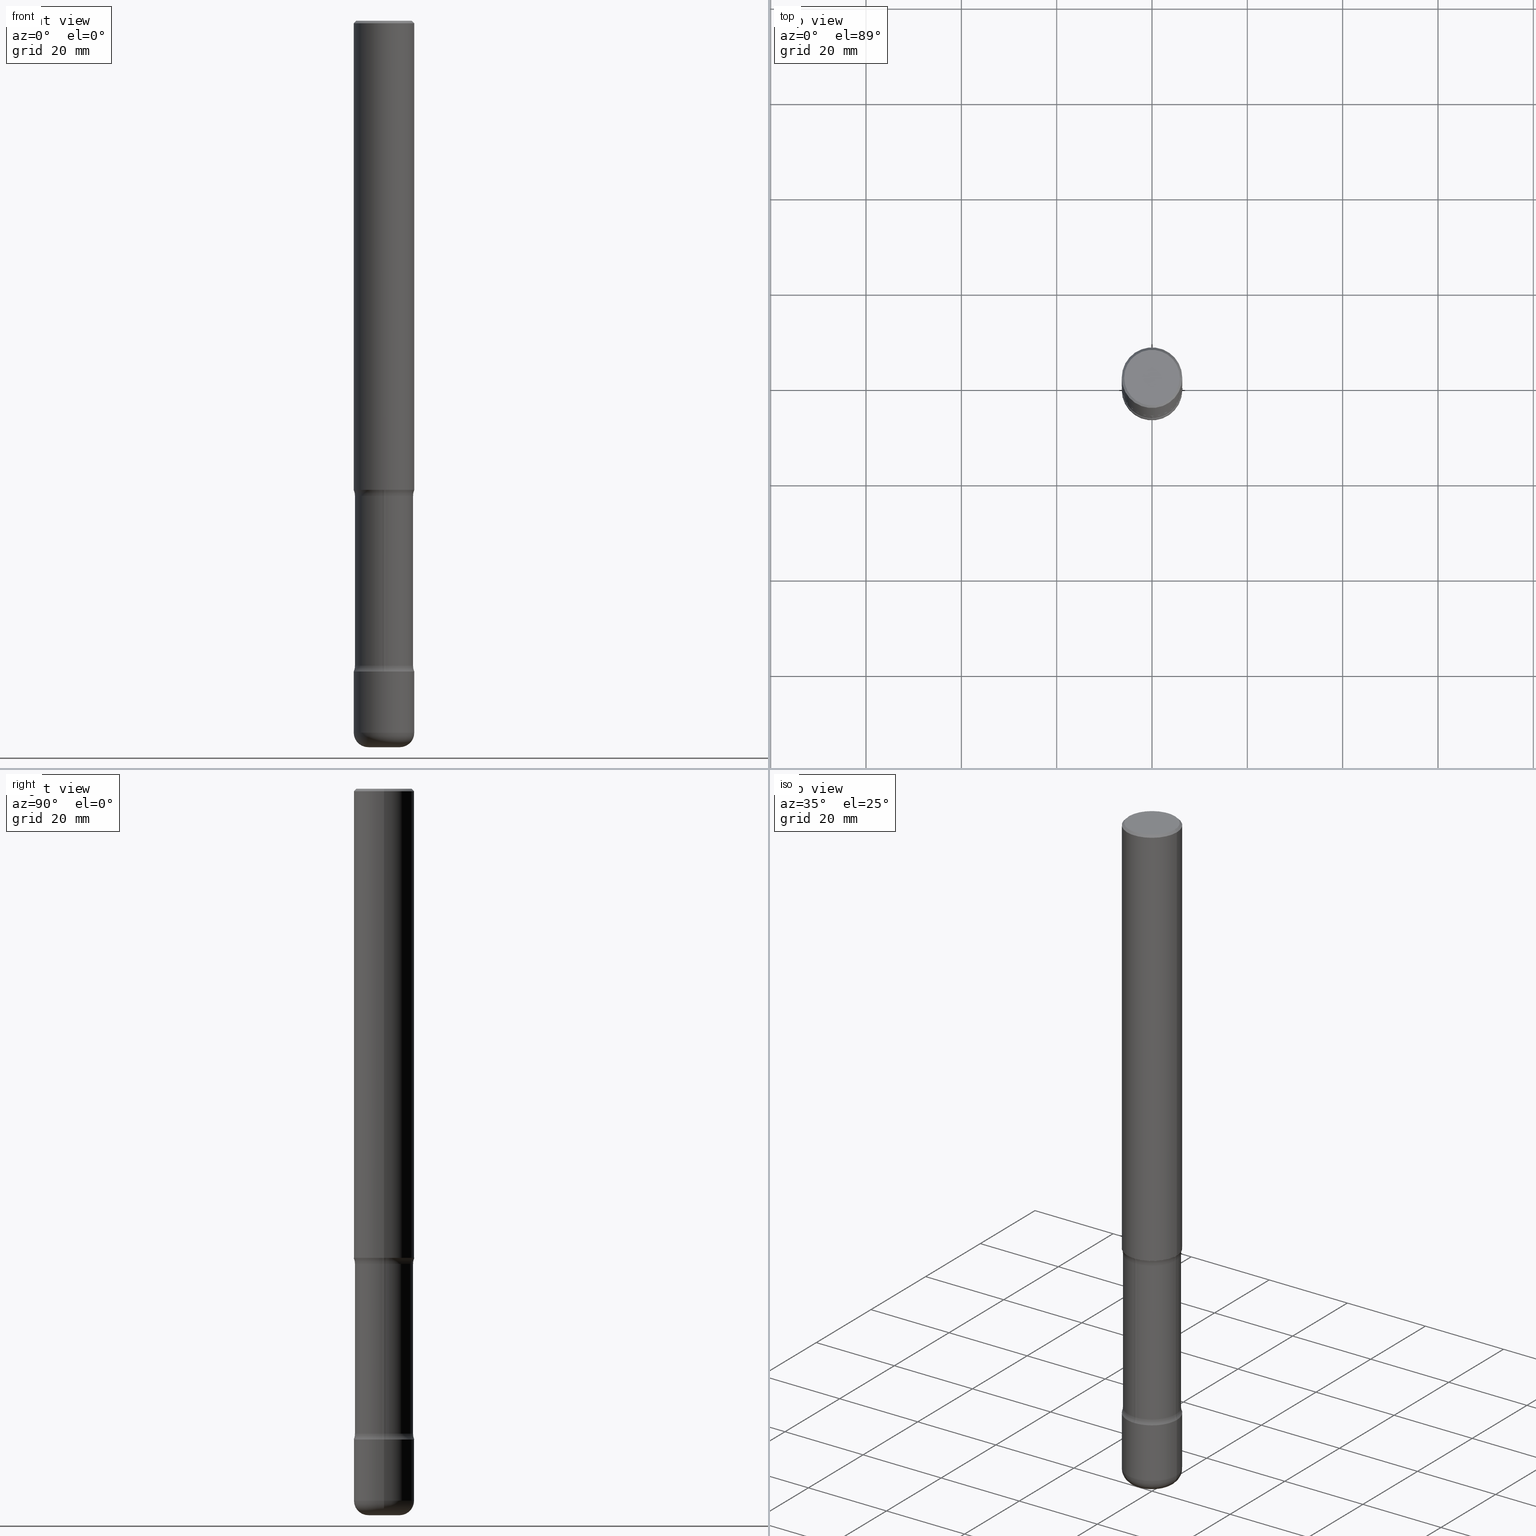
[diagram: canonical four-view strip — front | top / right | iso, engineering-drawing reading convention]
A machine part, canonical four-view strip (front | top / right | iso — engineering-drawing reading convention). The complete STEP part file that produces these views, byte-faithful:
ISO-10303-21;
HEADER;
FILE_DESCRIPTION (( 'STEP AP203' ),
    '1' );
FILE_NAME ('32838.STEP',
    '2023-03-11T07:05:41',
    ( '' ),
    ( '' ),
    'SwSTEP 2.0',
    'SolidWorks 2022',
    '' );
FILE_SCHEMA (( 'CONFIG_CONTROL_DESIGN' ));
ENDSEC;

DATA;
#1 = CARTESIAN_POINT ( 'NONE',  ( 1.314439483324511145E-28, -1.876671219628190963E-14, -5.375000000000000888 ) ) ;
#2 = APPROVAL_DATE_TIME ( #566, #227 ) ;
#3 = DIRECTION ( 'NONE',  ( 1.000000000000000000, -6.982962677686279332E-15, 0.000000000000000000 ) ) ;
#4 = APPLICATION_CONTEXT ( 'configuration controlled 3d designs of mechanical parts and assemblies' ) ;
#5 = EDGE_LOOP ( 'NONE', ( #623, #59, #175, #531 ) ) ;
#6 = PERSON_AND_ORGANIZATION ( #572, #706 ) ;
#7 = DIRECTION ( 'NONE',  ( 2.447307951285550770E-29, -3.488847578381714098E-15, -1.000000000000000000 ) ) ;
#8 = MANIFOLD_SOLID_BREP ( 'Body-Move/Copy2[1]', #286 ) ;
#9 = ORIENTED_EDGE ( 'NONE', *, *, #25, .T. ) ;
#10 = APPLICATION_PROTOCOL_DEFINITION ( 'international standard', 'config_control_design', 1994, #170 ) ;
#11 = DIRECTION ( 'NONE',  ( -1.000000000000000000, 6.982962677686265922E-15, -4.883557194083112340E-29 ) ) ;
#12 = EDGE_CURVE ( 'NONE', #544, #586, #197, .T. ) ;
#13 = MANIFOLD_SOLID_BREP ( 'Body-Move/Copy2[4]', #259 ) ;
#14 = VERTEX_POINT ( 'NONE', #96 ) ;
#15 = VECTOR ( 'NONE', #347, 39.37007874015748143 ) ;
#16 = APPROVAL_STATUS ( 'not_yet_approved' ) ;
#17 = CARTESIAN_POINT ( 'NONE',  ( 9.595994639108339414E-29, -1.370053714254949480E-14, -3.923989794855664126 ) ) ;
#18 = ORIENTED_EDGE ( 'NONE', *, *, #410, .T. ) ;
#19 = PERSON_AND_ORGANIZATION ( #572, #706 ) ;
#20 = DIRECTION ( 'NONE',  ( -2.445468806185136597E-29, 3.491481338843145583E-15, 1.000000000000000000 ) ) ;
#21 = ADVANCED_FACE ( 'NONE', ( #348 ), #298, .F. ) ;
#22 = ORIENTED_EDGE ( 'NONE', *, *, #301, .T. ) ;
#23 = DIRECTION ( 'NONE',  ( 1.000000000000000000, -6.982962677686270655E-15, 0.000000000000000000 ) ) ;
#24 = ORIENTED_EDGE ( 'NONE', *, *, #64, .T. ) ;
#25 = EDGE_CURVE ( 'NONE', #115, #515, #158, .T. ) ;
#26 = CIRCLE ( 'NONE', #447, 0.2500000000000000000 ) ;
#27 = EDGE_CURVE ( 'NONE', #544, #469, #364, .T. ) ;
#28 = CIRCLE ( 'NONE', #756, 0.1249999999999999584 ) ;
#29 = DIRECTION ( 'NONE',  ( 6.982962677686265922E-15, 1.000000000000000000, -4.370956789862821150E-15 ) ) ;
#30 = AXIS2_PLACEMENT_3D ( 'NONE', #111, #427, #310 ) ;
#31 = DIRECTION ( 'NONE',  ( 1.000000000000000000, -6.860497997771530774E-15, 4.840831133887331050E-29 ) ) ;
#32 = VERTEX_POINT ( 'NONE', #675 ) ;
#33 = APPROVAL_DATE_TIME ( #101, #592 ) ;
#34 = DIRECTION ( 'NONE',  ( -2.445468806185136597E-29, 3.491481338843145583E-15, 1.000000000000000000 ) ) ;
#35 = VERTEX_POINT ( 'NONE', #526 ) ;
#36 = CARTESIAN_POINT ( 'NONE',  ( -0.2400000000000001299, -1.187418396267109730E-14, -3.923989794855664126 ) ) ;
#37 = ADVANCED_FACE ( 'NONE', ( #794 ), #428, .T. ) ;
#38 = DIRECTION ( 'NONE',  ( 0.7071067811865469066, -7.319954787623254468E-15, -0.7071067811865481278 ) ) ;
#39 = CIRCLE ( 'NONE', #588, 0.1199999999999999262 ) ;
#40 = AXIS2_PLACEMENT_3D ( 'NONE', #294, #484, #540 ) ;
#41 = APPROVAL_PERSON_ORGANIZATION ( #19, #592, #517 ) ;
#42 = ORIENTED_EDGE ( 'NONE', *, *, #702, .F. ) ;
#43 = CARTESIAN_POINT ( 'NONE',  ( 9.595994639108339414E-29, -1.370053714254949480E-14, -3.923989794855664126 ) ) ;
#44 = CC_DESIGN_DATE_AND_TIME_ASSIGNMENT ( #642, #84, ( #757 ) ) ;
#45 = DIRECTION ( 'NONE',  ( 1.000000000000000000, -6.982962677686265133E-15, 0.000000000000000000 ) ) ;
#46 = DIRECTION ( 'NONE',  ( -2.445468806185136597E-29, 3.491481338843145583E-15, 1.000000000000000000 ) ) ;
#47 = CARTESIAN_POINT ( 'NONE',  ( 1.109421455397081628E-27, -1.583959811155270230E-13, -45.36641205936084731 ) ) ;
#48 = VERTEX_POINT ( 'NONE', #174 ) ;
#49 = ADVANCED_FACE ( 'NONE', ( #671 ), #575, .F. ) ;
#50 = DIRECTION ( 'NONE',  ( -2.445468806185136597E-29, 3.491481338843145583E-15, 1.000000000000000000 ) ) ;
#51 = DIRECTION ( 'NONE',  ( 2.447307951285550210E-29, -3.488847578381714492E-15, -1.000000000000000000 ) ) ;
#52 = ORIENTED_EDGE ( 'NONE', *, *, #661, .T. ) ;
#53 = AXIS2_PLACEMENT_3D ( 'NONE', #693, #74, #696 ) ;
#54 = AXIS2_PLACEMENT_3D ( 'NONE', #278, #784, #407 ) ;
#55 = ORIENTED_EDGE ( 'NONE', *, *, #12, .F. ) ;
#56 = EDGE_CURVE ( 'NONE', #35, #515, #100, .T. ) ;
#57 = FACE_OUTER_BOUND ( 'NONE', #151, .T. ) ;
#58 = CARTESIAN_POINT ( 'NONE',  ( 1.302459181810417859E-28, -1.859566524174961022E-14, -5.326010205144338094 ) ) ;
#59 = ORIENTED_EDGE ( 'NONE', *, *, #372, .F. ) ;
#60 = CARTESIAN_POINT ( 'NONE',  ( 2.548781377355619247E-15, 0.3649999999999816724, -5.326010205144338983 ) ) ;
#61 = PLANE ( 'NONE',  #30 ) ;
#62 = CARTESIAN_POINT ( 'NONE',  ( -1.043851414335219820E-46, 1.490343170380447200E-32, 4.268512490100411279E-18 ) ) ;
#63 = EDGE_CURVE ( 'NONE', #359, #88, #607, .T. ) ;
#64 = EDGE_CURVE ( 'NONE', #763, #115, #394, .T. ) ;
#65 = ORIENTED_EDGE ( 'NONE', *, *, #179, .T. ) ;
#66 = DIRECTION ( 'NONE',  ( 6.982962677686265922E-15, 1.000000000000000000, -4.553079989440436725E-15 ) ) ;
#67 = APPROVAL_ROLE ( '' ) ;
#68 = CARTESIAN_POINT ( 'NONE',  ( 1.467281283711081958E-28, -2.094888803305887271E-14, -6.000000000000000888 ) ) ;
#69 = CIRCLE ( 'NONE', #703, 0.2500000000000000000 ) ;
#70 = AXIS2_PLACEMENT_3D ( 'NONE', #431, #181, #685 ) ;
#71 = ORIENTED_EDGE ( 'NONE', *, *, #449, .F. ) ;
#72 = AXIS2_PLACEMENT_3D ( 'NONE', #558, #51, #245 ) ;
#73 = CALENDAR_DATE ( 2023, 11, 3 ) ;
#74 = DIRECTION ( 'NONE',  ( 2.438088387897960049E-29, -3.491481338843145188E-15, -1.000000000000000000 ) ) ;
#75 = ORIENTED_EDGE ( 'NONE', *, *, #97, .T. ) ;
#76 = ADVANCED_FACE ( 'NONE', ( #466 ), #508, .F. ) ;
#77 = MECHANICAL_CONTEXT ( 'NONE', #4, 'mechanical' ) ;
#78 = CARTESIAN_POINT ( 'NONE',  ( -0.2499999999999999722, -1.875355343299744876E-14, -5.880000000000000782 ) ) ;
#79 = VERTEX_POINT ( 'NONE', #154 ) ;
#80 = DIRECTION ( 'NONE',  ( 1.000000000000000000, -6.982962677686261189E-15, 0.000000000000000000 ) ) ;
#81 = ORIENTED_EDGE ( 'NONE', *, *, #747, .F. ) ;
#82 = VECTOR ( 'NONE', #357, 39.37007874015748143 ) ;
#83 = VECTOR ( 'NONE', #718, 39.37007874015748143 ) ;
#84 = DATE_TIME_ROLE ( 'classification_date' ) ;
#85 = DIRECTION ( 'NONE',  ( -2.445468806185136597E-29, 3.491481338843145583E-15, 1.000000000000000000 ) ) ;
#86 = ORIENTED_EDGE ( 'NONE', *, *, #27, .T. ) ;
#87 = DIRECTION ( 'NONE',  ( -2.438088387897960049E-29, 3.491481338843145188E-15, 1.000000000000000000 ) ) ;
#88 = VERTEX_POINT ( 'NONE', #234 ) ;
#89 = CARTESIAN_POINT ( 'NONE',  ( -1.684605559392376198E-27, -2.832062954248278293E-13, -5.999999999999999112 ) ) ;
#90 = ORIENTED_EDGE ( 'NONE', *, *, #485, .F. ) ;
#91 = AXIS2_PLACEMENT_3D ( 'NONE', #62, #573, #203 ) ;
#92 = CIRCLE ( 'NONE', #212, 0.2299999999999997047 ) ;
#93 = CARTESIAN_POINT ( 'NONE',  ( 4.890937612370287172E-31, -6.982962677686310098E-17, -0.02000000000000005593 ) ) ;
#94 = APPROVAL_PERSON_ORGANIZATION ( #454, #227, #67 ) ;
#95 = CARTESIAN_POINT ( 'NONE',  ( -1.579290560953584941E-17, -2.093608588548193142E-14, -5.996333319203365875 ) ) ;
#96 = CARTESIAN_POINT ( 'NONE',  ( -0.2499999999999999722, -5.023303067996774148E-15, -3.875000000000000444 ) ) ;
#97 = EDGE_CURVE ( 'NONE', #48, #503, #600, .T. ) ;
#98 = EDGE_CURVE ( 'NONE', #415, #527, #414, .T. ) ;
#99 = CARTESIAN_POINT ( 'NONE',  ( -1.680822009453894668E-15, -0.2400000000000188927, -5.326010205144336318 ) ) ;
#100 = LINE ( 'NONE', #787, #82 ) ;
#101 = DATE_AND_TIME ( #769, #724 ) ;
#102 = CYLINDRICAL_SURFACE ( 'NONE', #40, 0.2400000000000001854 ) ;
#103 = ORIENTED_EDGE ( 'NONE', *, *, #569, .T. ) ;
#104 = TOROIDAL_SURFACE ( 'NONE', #159, 0.3650000000000000466, 0.1250000000000000555 ) ;
#105 = DIRECTION ( 'NONE',  ( 1.000000000000000000, -6.982962677686265133E-15, 0.000000000000000000 ) ) ;
#106 = AXIS2_PLACEMENT_3D ( 'NONE', #1, #192, #624 ) ;
#107 = AXIS2_PLACEMENT_3D ( 'NONE', #465, #660, #785 ) ;
#108 = ADVANCED_FACE ( 'NONE', ( #553 ), #506, .F. ) ;
#109 = EDGE_LOOP ( 'NONE', ( #132, #725, #583, #368 ) ) ;
#110 = DIRECTION ( 'NONE',  ( -2.445468806185136597E-29, 3.491481338843145583E-15, 1.000000000000000000 ) ) ;
#111 = CARTESIAN_POINT ( 'NONE',  ( 1.314439483324511145E-28, -1.876671219628190963E-14, -5.375000000000000888 ) ) ;
#112 = EDGE_CURVE ( 'NONE', #586, #204, #39, .T. ) ;
#113 = ORIENTED_EDGE ( 'NONE', *, *, #97, .F. ) ;
#114 = DIRECTION ( 'NONE',  ( 6.982962677686265922E-15, 1.000000000000000000, -3.488847578381714098E-15 ) ) ;
#115 = VERTEX_POINT ( 'NONE', #324 ) ;
#116 = CARTESIAN_POINT ( 'NONE',  ( 9.476191623967405434E-29, -1.352949018801719066E-14, -3.875000000000000444 ) ) ;
#117 = FACE_OUTER_BOUND ( 'NONE', #267, .T. ) ;
#118 = EDGE_LOOP ( 'NONE', ( #71, #235, #735, #42 ) ) ;
#119 = CIRCLE ( 'NONE', #198, 0.1249999999999999584 ) ;
#120 = AXIS2_PLACEMENT_3D ( 'NONE', #17, #34, #470 ) ;
#121 = ORIENTED_EDGE ( 'NONE', *, *, #332, .F. ) ;
#122 = DIRECTION ( 'NONE',  ( 0.9993908270190957621, -6.978169709227536755E-15, -0.03489949670249952590 ) ) ;
#123 = ADVANCED_FACE ( 'NONE', ( #196 ), #390, .T. ) ;
#124 = EDGE_CURVE ( 'NONE', #750, #262, #676, .T. ) ;
#125 = EDGE_CURVE ( 'NONE', #527, #681, #69, .T. ) ;
#126 = DIRECTION ( 'NONE',  ( 1.000000000000000000, -6.982962677686266711E-15, 4.876176775795935793E-29 ) ) ;
#127 = CARTESIAN_POINT ( 'NONE',  ( 0.000000000000000000, 0.000000000000000000, 0.000000000000000000 ) ) ;
#128 = ORIENTED_EDGE ( 'NONE', *, *, #499, .F. ) ;
#129 = DIRECTION ( 'NONE',  ( 2.447307951285550770E-29, -3.488847578381714098E-15, -1.000000000000000000 ) ) ;
#130 = CARTESIAN_POINT ( 'NONE',  ( 9.593326020798897395E-29, -1.370435875585693755E-14, -3.923989794855664126 ) ) ;
#131 = PRODUCT ( '32838', '32838', '', ( #77 ) ) ;
#132 = ORIENTED_EDGE ( 'NONE', *, *, #56, .F. ) ;
#133 = CARTESIAN_POINT ( 'NONE',  ( 1.109421455397081628E-27, -1.583959811155270230E-13, -45.36641205936084731 ) ) ;
#134 = AXIS2_PLACEMENT_3D ( 'NONE', #468, #709, #772 ) ;
#135 = EDGE_CURVE ( 'NONE', #586, #544, #521, .T. ) ;
#136 = ADVANCED_FACE ( 'NONE', ( #434 ), #460, .F. ) ;
#137 = ORIENTED_EDGE ( 'NONE', *, *, #806, .T. ) ;
#138 = PERSON_AND_ORGANIZATION_ROLE ( 'classification_officer' ) ;
#139 = DIRECTION ( 'NONE',  ( -2.445468806185136597E-29, 3.491481338843145583E-15, 1.000000000000000000 ) ) ;
#140 = ORIENTED_EDGE ( 'NONE', *, *, #410, .F. ) ;
#141 = DATE_AND_TIME ( #699, #691 ) ;
#142 = DIRECTION ( 'NONE',  ( -2.445468806185136597E-29, 3.491481338843145583E-15, 1.000000000000000000 ) ) ;
#143 = ORIENTED_EDGE ( 'NONE', *, *, #780, .T. ) ;
#144 = CARTESIAN_POINT ( 'NONE',  ( 0.2400000000000002687, -2.027157628439431676E-14, -5.326010205144338094 ) ) ;
#145 = EDGE_LOOP ( 'NONE', ( #24, #648 ) ) ;
#146 = AXIS2_PLACEMENT_3D ( 'NONE', #47, #542, #424 ) ;
#147 = AXIS2_PLACEMENT_3D ( 'NONE', #116, #187, #365 ) ;
#148 = CARTESIAN_POINT ( 'NONE',  ( 0.000000000000000000, 0.000000000000000000, 0.000000000000000000 ) ) ;
#149 = FACE_OUTER_BOUND ( 'NONE', #5, .T. ) ;
#150 = ADVANCED_FACE ( 'NONE', ( #639 ), #307, .F. ) ;
#151 = EDGE_LOOP ( 'NONE', ( #190, #701, #312, #519 ) ) ;
#152 = ADVANCED_FACE ( 'NONE', ( #242 ), #631, .F. ) ;
#153 = CARTESIAN_POINT ( 'NONE',  ( -0.3650000000000002687, -1.600218425622524303E-14, -5.326010205144338094 ) ) ;
#154 = CARTESIAN_POINT ( 'NONE',  ( -0.2500000000000000000, -1.787195439493955396E-14, -5.375000000000000888 ) ) ;
#155 = DIRECTION ( 'NONE',  ( 1.000000000000000000, -6.982962677686265922E-15, 4.876176775795935793E-29 ) ) ;
#156 = DIRECTION ( 'NONE',  ( -2.445468806185136597E-29, 3.491481338843145583E-15, 1.000000000000000000 ) ) ;
#157 = EDGE_CURVE ( 'NONE', #363, #14, #738, .T. ) ;
#158 = CIRCLE ( 'NONE', #393, 0.1250000000000000000 ) ;
#159 = AXIS2_PLACEMENT_3D ( 'NONE', #182, #7, #189 ) ;
#160 = AXIS2_PLACEMENT_3D ( 'NONE', #476, #50, #778 ) ;
#161 = FACE_OUTER_BOUND ( 'NONE', #342, .T. ) ;
#162 = CC_DESIGN_APPROVAL ( #786, ( #397 ) ) ;
#163 = ORIENTED_EDGE ( 'NONE', *, *, #475, .T. ) ;
#164 = CARTESIAN_POINT ( 'NONE',  ( 0.2499999999999997224, -1.784954126219744217E-15, -0.02000000000000005593 ) ) ;
#165 = DIRECTION ( 'NONE',  ( -1.000000000000000000, 6.982962677686266711E-15, 0.000000000000000000 ) ) ;
#166 = CIRCLE ( 'NONE', #230, 0.2400000000000001021 ) ;
#167 = CARTESIAN_POINT ( 'NONE',  ( -1.043851414335219820E-46, 1.490343170380447200E-32, 4.268512490100411279E-18 ) ) ;
#168 = LOCAL_TIME ( 2, 5, 41.00000000000000000, #513 ) ;
#169 = DIRECTION ( 'NONE',  ( 6.860497997771532351E-15, 1.000000000000000000, 0.000000000000000000 ) ) ;
#170 = APPLICATION_CONTEXT ( 'configuration controlled 3d designs of mechanical parts and assemblies' ) ;
#171 = ORIENTED_EDGE ( 'NONE', *, *, #698, .F. ) ;
#172 = FACE_OUTER_BOUND ( 'NONE', #320, .T. ) ;
#173 = PLANE ( 'NONE',  #72 ) ;
#174 = CARTESIAN_POINT ( 'NONE',  ( -0.2299999999999997047, 1.640996229256270547E-15, 4.268512490089056766E-18 ) ) ;
#175 = ORIENTED_EDGE ( 'NONE', *, *, #332, .T. ) ;
#176 = DIRECTION ( 'NONE',  ( 2.445468806185136597E-29, -3.491481338843145583E-15, -1.000000000000000000 ) ) ;
#177 = DIRECTION ( 'NONE',  ( -2.445468806185136597E-29, 3.491481338843145583E-15, 1.000000000000000000 ) ) ;
#178 = ORIENTED_EDGE ( 'NONE', *, *, #659, .F. ) ;
#179 = EDGE_CURVE ( 'NONE', #561, #359, #802, .T. ) ;
#180 = ADVANCED_FACE ( 'NONE', ( #744 ), #104, .F. ) ;
#181 = DIRECTION ( 'NONE',  ( -2.445468806185136597E-29, 3.491481338843145583E-15, 1.000000000000000000 ) ) ;
#182 = CARTESIAN_POINT ( 'NONE',  ( 9.595994639108339414E-29, -1.370053714254949480E-14, -3.923989794855664126 ) ) ;
#183 = AXIS2_PLACEMENT_3D ( 'NONE', #68, #371, #439 ) ;
#184 = CIRCLE ( 'NONE', #740, 0.1250000000000000000 ) ;
#185 = TOROIDAL_SURFACE ( 'NONE', #771, 0.1300000000000000044, 0.1199999999999999123 ) ;
#186 = ORIENTED_EDGE ( 'NONE', *, *, #619, .F. ) ;
#187 = DIRECTION ( 'NONE',  ( -2.445468806185136597E-29, 3.491481338843145583E-15, 1.000000000000000000 ) ) ;
#188 = FACE_OUTER_BOUND ( 'NONE', #677, .T. ) ;
#189 = DIRECTION ( 'NONE',  ( 6.982962677686265922E-15, 1.000000000000000000, -3.488847578381714098E-15 ) ) ;
#190 = ORIENTED_EDGE ( 'NONE', *, *, #157, .T. ) ;
#191 = ADVANCED_BREP_SHAPE_REPRESENTATION ( '32838', ( #8, #275, #539, #13, #224 ), #263 ) ;
#192 = DIRECTION ( 'NONE',  ( -2.445468806185136597E-29, 3.491481338843145583E-15, 1.000000000000000000 ) ) ;
#193 = DIRECTION ( 'NONE',  ( 2.447307951285550770E-29, -3.488847578381714098E-15, -1.000000000000000000 ) ) ;
#194 = EDGE_LOOP ( 'NONE', ( #672, #689, #128, #456 ) ) ;
#195 =( CONVERSION_BASED_UNIT ( 'INCH', #489 ) LENGTH_UNIT ( ) NAMED_UNIT ( #637 ) );
#196 = FACE_OUTER_BOUND ( 'NONE', #378, .T. ) ;
#197 = CIRCLE ( 'NONE', #651, 0.1300000000000000322 ) ;
#198 = AXIS2_PLACEMENT_3D ( 'NONE', #153, #279, #399 ) ;
#199 = AXIS2_PLACEMENT_3D ( 'NONE', #658, #609, #547 ) ;
#200 = VERTEX_POINT ( 'NONE', #683 ) ;
#201 = LOCAL_TIME ( 2, 5, 41.00000000000000000, #686 ) ;
#202 = APPROVAL_ROLE ( '' ) ;
#203 = DIRECTION ( 'NONE',  ( 1.000000000000000000, -6.982962677686266711E-15, 4.876225828469315047E-29 ) ) ;
#204 = VERTEX_POINT ( 'NONE', #78 ) ;
#205 = APPLICATION_PROTOCOL_DEFINITION ( 'international standard', 'config_control_design', 1994, #4 ) ;
#206 = CARTESIAN_POINT ( 'NONE',  ( 9.476191623967405434E-29, -1.352949018801719066E-14, -3.875000000000000444 ) ) ;
#207 = ORIENTED_EDGE ( 'NONE', *, *, #157, .F. ) ;
#208 = EDGE_CURVE ( 'NONE', #35, #415, #166, .T. ) ;
#209 = FACE_BOUND ( 'NONE', #373, .T. ) ;
#210 = AXIS2_PLACEMENT_3D ( 'NONE', #770, #776, #584 ) ;
#211 = EDGE_LOOP ( 'NONE', ( #55, #462 ) ) ;
#212 = AXIS2_PLACEMENT_3D ( 'NONE', #167, #349, #597 ) ;
#213 = CIRCLE ( 'NONE', #448, 0.1250000000000000278 ) ;
#214 = CARTESIAN_POINT ( 'NONE',  ( 0.1049999999999998712, -2.166924032282488112E-14, -5.999999999999999112 ) ) ;
#215 = VERTEX_POINT ( 'NONE', #502 ) ;
#216 = DIRECTION ( 'NONE',  ( -2.445468806185136597E-29, 3.491481338843145583E-15, 1.000000000000000000 ) ) ;
#217 = DIRECTION ( 'NONE',  ( -2.445468806185136877E-29, 3.491481338843145188E-15, 1.000000000000000000 ) ) ;
#218 = ORIENTED_EDGE ( 'NONE', *, *, #277, .T. ) ;
#219 = CARTESIAN_POINT ( 'NONE',  ( 0.3650000000000000466, -1.624931851990498309E-14, -3.923989794855664126 ) ) ;
#220 = CARTESIAN_POINT ( 'NONE',  ( 1.467281283711081958E-28, -2.094888803305887271E-14, -6.000000000000000888 ) ) ;
#221 = AXIS2_PLACEMENT_3D ( 'NONE', #680, #11, #446 ) ;
#222 = VECTOR ( 'NONE', #38, 39.37007874015748143 ) ;
#223 = FACE_OUTER_BOUND ( 'NONE', #443, .T. ) ;
#224 = AXIS2_PLACEMENT_3D ( 'NONE', #148, #638, #761 ) ;
#225 = ADVANCED_FACE ( 'NONE', ( #748 ), #442, .T. ) ;
#226 = CYLINDRICAL_SURFACE ( 'NONE', #461, 0.2400000000000001854 ) ;
#227 = APPROVAL ( #16, 'UNSPECIFIED' ) ;
#228 = DIRECTION ( 'NONE',  ( -6.982962677686266711E-15, -1.000000000000000000, 3.491481338843145583E-15 ) ) ;
#229 = CARTESIAN_POINT ( 'NONE',  ( 1.675911042644851685E-15, 0.2399999999999792299, -5.996333319203366763 ) ) ;
#230 = AXIS2_PLACEMENT_3D ( 'NONE', #130, #376, #253 ) ;
#231 = LINE ( 'NONE', #291, #83 ) ;
#232 = VECTOR ( 'NONE', #244, 39.37007874015748143 ) ;
#233 = PLANE ( 'NONE',  #353 ) ;
#234 = CARTESIAN_POINT ( 'NONE',  ( 0.2400000000000001021, -1.537644818519419975E-14, -3.923989794855664126 ) ) ;
#235 = ORIENTED_EDGE ( 'NONE', *, *, #485, .T. ) ;
#236 = FACE_OUTER_BOUND ( 'NONE', #711, .T. ) ;
#237 = DIRECTION ( 'NONE',  ( -2.438088387897960049E-29, 3.491481338843145188E-15, 1.000000000000000000 ) ) ;
#238 = EDGE_LOOP ( 'NONE', ( #81, #745, #512, #450 ) ) ;
#239 = ORIENTED_EDGE ( 'NONE', *, *, #125, .F. ) ;
#240 = CYLINDRICAL_SURFACE ( 'NONE', #147, 0.2400000000000001854 ) ;
#241 = DIRECTION ( 'NONE',  ( -1.000000000000000000, 7.105427357601009747E-15, 0.000000000000000000 ) ) ;
#242 = FACE_OUTER_BOUND ( 'NONE', #145, .T. ) ;
#243 = EDGE_LOOP ( 'NONE', ( #453, #163 ) ) ;
#244 = DIRECTION ( 'NONE',  ( -2.445468806185136877E-29, 3.491481338843145188E-15, 1.000000000000000000 ) ) ;
#245 = DIRECTION ( 'NONE',  ( 6.982962677686265922E-15, 1.000000000000000000, -3.488847578381714492E-15 ) ) ;
#246 = CARTESIAN_POINT ( 'NONE',  ( -0.1300000000000000044, -1.960620471590956659E-14, -5.880000000000000782 ) ) ;
#247 = AXIS2_PLACEMENT_3D ( 'NONE', #127, #498, #387 ) ;
#248 = AXIS2_PLACEMENT_3D ( 'NONE', #656, #478, #666 ) ;
#249 = VERTEX_POINT ( 'NONE', #455 ) ;
#250 = EDGE_CURVE ( 'NONE', #608, #249, #690, .T. ) ;
#251 = CARTESIAN_POINT ( 'NONE',  ( 0.2499999999999999167, -2.051245286570347630E-14, -5.375000000000000888 ) ) ;
#252 = PERSON_AND_ORGANIZATION_ROLE ( 'creator' ) ;
#253 = DIRECTION ( 'NONE',  ( 6.982962677686265922E-15, 1.000000000000000000, -4.553079989440436725E-15 ) ) ;
#254 = ORIENTED_EDGE ( 'NONE', *, *, #530, .F. ) ;
#255 = PERSON_AND_ORGANIZATION_ROLE ( 'design_owner' ) ;
#256 = CARTESIAN_POINT ( 'NONE',  ( 0.000000000000000000, 0.000000000000000000, 0.000000000000000000 ) ) ;
#257 = ORIENTED_EDGE ( 'NONE', *, *, #702, .T. ) ;
#258 = DIRECTION ( 'NONE',  ( 1.000000000000000000, -6.982962677686265922E-15, 4.876176775795935793E-29 ) ) ;
#259 = CLOSED_SHELL ( 'NONE', ( #529, #49, #504, #180, #759, #152, #21, #555 ) ) ;
#260 = CIRCLE ( 'NONE', #471, 0.2500000000000000000 ) ;
#261 = CIRCLE ( 'NONE', #54, 0.2400000000000002687 ) ;
#262 = VERTEX_POINT ( 'NONE', #214 ) ;
#263 =( GEOMETRIC_REPRESENTATION_CONTEXT ( 3 ) GLOBAL_UNCERTAINTY_ASSIGNED_CONTEXT ( ( #400 ) ) GLOBAL_UNIT_ASSIGNED_CONTEXT ( ( #195, #333, #580 ) ) REPRESENTATION_CONTEXT ( 'NONE', 'WORKASPACE' ) );
#264 = SECURITY_CLASSIFICATION_LEVEL ( 'unclassified' ) ;
#265 = CARTESIAN_POINT ( 'NONE',  ( 0.2500000000000000000, -2.051245286570347630E-14, -5.375000000000000888 ) ) ;
#266 = ADVANCED_FACE ( 'NONE', ( #710, #209 ), #269, .F. ) ;
#267 = EDGE_LOOP ( 'NONE', ( #239, #636 ) ) ;
#268 = APPROVAL_STATUS ( 'not_yet_approved' ) ;
#269 = PLANE ( 'NONE',  #329 ) ;
#270 = EDGE_CURVE ( 'NONE', #384, #79, #260, .T. ) ;
#271 = ORIENTED_EDGE ( 'NONE', *, *, #63, .T. ) ;
#272 = CIRCLE ( 'NONE', #641, 0.2500000000000000000 ) ;
#273 = EDGE_LOOP ( 'NONE', ( #171, #697, #694 ) ) ;
#274 = AXIS2_PLACEMENT_3D ( 'NONE', #673, #746, #679 ) ;
#275 = MANIFOLD_SOLID_BREP ( 'Body-Move/Copy2[2]', #560 ) ;
#276 = AXIS2_PLACEMENT_3D ( 'NONE', #433, #370, #670 ) ;
#277 = EDGE_CURVE ( 'NONE', #561, #249, #119, .T. ) ;
#278 = CARTESIAN_POINT ( 'NONE',  ( 1.302450171876299907E-28, -1.859579426913431588E-14, -5.326010205144338094 ) ) ;
#279 = DIRECTION ( 'NONE',  ( 7.105427357601001859E-15, 1.000000000000000000, -3.491481338843145583E-15 ) ) ;
#280 = CARTESIAN_POINT ( 'NONE',  ( -1.715124499442788030E-15, -0.2500000000000136002, -3.874999999999999556 ) ) ;
#281 = DIRECTION ( 'NONE',  ( 6.860497997771529985E-15, 1.000000000000000000, 0.000000000000000000 ) ) ;
#282 = EDGE_LOOP ( 'NONE', ( #75, #799 ) ) ;
#283 = DIRECTION ( 'NONE',  ( -2.445468806185136597E-29, 3.491481338843145583E-15, 1.000000000000000000 ) ) ;
#284 = ORIENTED_EDGE ( 'NONE', *, *, #377, .T. ) ;
#285 = DIRECTION ( 'NONE',  ( -2.445468806185136597E-29, 3.491481338843145583E-15, 1.000000000000000000 ) ) ;
#286 = CLOSED_SHELL ( 'NONE', ( #76, #225, #768, #266, #516, #717, #150, #136 ) ) ;
#287 = AXIS2_PLACEMENT_3D ( 'NONE', #133, #758, #622 ) ;
#288 = CIRCLE ( 'NONE', #565, 0.2400000000000001021 ) ;
#289 = DIRECTION ( 'NONE',  ( 1.000000000000000000, -6.982962677686265133E-15, 0.000000000000000000 ) ) ;
#290 = EDGE_CURVE ( 'NONE', #681, #527, #628, .T. ) ;
#291 = CARTESIAN_POINT ( 'NONE',  ( -0.2499999999999998612, 1.776356839400249479E-15, -1.229733772563725745E-29 ) ) ;
#292 = CARTESIAN_POINT ( 'NONE',  ( 1.675911042644836105E-15, 0.2399999999999816724, -5.326010205144338983 ) ) ;
#293 = ADVANCED_FACE ( 'NONE', ( #336 ), #444, .T. ) ;
#294 = CARTESIAN_POINT ( 'NONE',  ( 1.466498880573015090E-28, -2.093444944235244249E-14, -5.996333319203365875 ) ) ;
#295 = DIRECTION ( 'NONE',  ( 2.447307951285550770E-29, -3.488847578381714492E-15, -1.000000000000000000 ) ) ;
#296 = DIRECTION ( 'NONE',  ( 2.447307951285550770E-29, -3.488847578381714098E-15, -1.000000000000000000 ) ) ;
#297 = ORIENTED_EDGE ( 'NONE', *, *, #585, .T. ) ;
#298 = TOROIDAL_SURFACE ( 'NONE', #753, 0.3650000000000002687, 0.1250000000000000000 ) ;
#299 = CARTESIAN_POINT ( 'NONE',  ( 0.1300000000000000322, -2.185667318115808927E-14, -6.000000000000000888 ) ) ;
#300 = CIRCLE ( 'NONE', #767, 0.2500000000000000000 ) ;
#301 = EDGE_CURVE ( 'NONE', #200, #398, #779, .T. ) ;
#302 = APPROVAL_PERSON_ORGANIZATION ( #386, #786, #202 ) ;
#303 = CARTESIAN_POINT ( 'NONE',  ( -0.2499999999999997224, 1.675911042644701605E-15, -0.02000000000000005593 ) ) ;
#304 = CARTESIAN_POINT ( 'NONE',  ( 1.302459181810417859E-28, -1.859566524174961022E-14, -5.326010205144338094 ) ) ;
#305 = EDGE_LOOP ( 'NONE', ( #435, #632, #425, #760 ) ) ;
#306 = CYLINDRICAL_SURFACE ( 'NONE', #274, 0.2499999999999998612 ) ;
#307 = PLANE ( 'NONE',  #53 ) ;
#308 = ORIENTED_EDGE ( 'NONE', *, *, #492, .F. ) ;
#309 = PRODUCT_DEFINITION_SHAPE ( 'NONE', 'NONE',  #420 ) ;
#310 = DIRECTION ( 'NONE',  ( -1.000000000000000000, 6.982962677686265922E-15, -4.876176775795935793E-29 ) ) ;
#311 = DIRECTION ( 'NONE',  ( -2.438088387897960049E-29, 3.491481338843145188E-15, 1.000000000000000000 ) ) ;
#312 = ORIENTED_EDGE ( 'NONE', *, *, #593, .F. ) ;
#313 = CARTESIAN_POINT ( 'NONE',  ( -0.1300000000000000322, -1.938936795478409599E-14, -6.000000000000000888 ) ) ;
#314 = AXIS2_PLACEMENT_3D ( 'NONE', #219, #704, #80 ) ;
#315 = COORDINATED_UNIVERSAL_TIME_OFFSET ( 5, 0, .BEHIND. ) ;
#316 = CARTESIAN_POINT ( 'NONE',  ( 9.476191623967405434E-29, -1.352949018801719066E-14, -3.875000000000000444 ) ) ;
#317 = CIRCLE ( 'NONE', #248, 0.2500000000000000000 ) ;
#318 = AXIS2_PLACEMENT_3D ( 'NONE', #793, #46, #126 ) ;
#319 = CC_DESIGN_PERSON_AND_ORGANIZATION_ASSIGNMENT ( #509, #252, ( #420 ) ) ;
#320 = EDGE_LOOP ( 'NONE', ( #297, #362, #140, #684 ) ) ;
#321 = DATE_AND_TIME ( #73, #201 ) ;
#322 = CARTESIAN_POINT ( 'NONE',  ( 1.314439483324511145E-28, -1.876671219628190963E-14, -5.375000000000000888 ) ) ;
#323 = EDGE_LOOP ( 'NONE', ( #344, #523, #86, #491 ) ) ;
#324 = CARTESIAN_POINT ( 'NONE',  ( -1.715124499442751545E-15, -0.2500000000000187073, -5.374999999999999112 ) ) ;
#325 = ORIENTED_EDGE ( 'NONE', *, *, #536, .T. ) ;
#326 = APPROVAL_DATE_TIME ( #141, #786 ) ;
#327 = DIRECTION ( 'NONE',  ( 1.000000000000000000, -6.982962677686270655E-15, 0.000000000000000000 ) ) ;
#328 = EDGE_CURVE ( 'NONE', #469, #204, #272, .T. ) ;
#329 = AXIS2_PLACEMENT_3D ( 'NONE', #89, #87, #155 ) ;
#330 = CIRCLE ( 'NONE', #563, 0.2400000000000001021 ) ;
#331 = ORIENTED_EDGE ( 'NONE', *, *, #493, .F. ) ;
#332 = EDGE_CURVE ( 'NONE', #32, #88, #662, .T. ) ;
#333 =( NAMED_UNIT ( * ) PLANE_ANGLE_UNIT ( ) SI_UNIT ( $, .RADIAN. ) );
#334 = DIRECTION ( 'NONE',  ( -2.445468806185136597E-29, 3.491481338843145583E-15, 1.000000000000000000 ) ) ;
#335 = ORIENTED_EDGE ( 'NONE', *, *, #64, .F. ) ;
#336 = FACE_OUTER_BOUND ( 'NONE', #118, .T. ) ;
#337 = ORIENTED_EDGE ( 'NONE', *, *, #25, .F. ) ;
#338 = ADVANCED_FACE ( 'NONE', ( #161 ), #722, .F. ) ;
#339 = DIRECTION ( 'NONE',  ( 1.000000000000000000, -6.982962677686262766E-15, 0.000000000000000000 ) ) ;
#340 = DIRECTION ( 'NONE',  ( 2.438088387897960049E-29, -3.491481338843145188E-15, -1.000000000000000000 ) ) ;
#341 = AXIS2_PLACEMENT_3D ( 'NONE', #773, #524, #29 ) ;
#342 = EDGE_LOOP ( 'NONE', ( #388, #218, #103, #731 ) ) ;
#343 = CONICAL_SURFACE ( 'NONE', #351, 0.2499999999999997224, 0.7853981633974473908 ) ;
#344 = ORIENTED_EDGE ( 'NONE', *, *, #112, .F. ) ;
#345 = EDGE_CURVE ( 'NONE', #215, #32, #26, .T. ) ;
#346 = CARTESIAN_POINT ( 'NONE',  ( 1.437935658036860328E-28, -2.052991027239769923E-14, -5.880000000000000782 ) ) ;
#347 = DIRECTION ( 'NONE',  ( -0.9993908270190957621, 6.856857904024561992E-15, -0.03489949670249952590 ) ) ;
#348 = FACE_OUTER_BOUND ( 'NONE', #591, .T. ) ;
#349 = DIRECTION ( 'NONE',  ( -2.445468806185136597E-29, 3.491481338843145583E-15, 1.000000000000000000 ) ) ;
#350 = DIRECTION ( 'NONE',  ( -2.445468806185136597E-29, 3.491481338843145583E-15, 1.000000000000000000 ) ) ;
#351 = AXIS2_PLACEMENT_3D ( 'NONE', #781, #176, #165 ) ;
#352 = CARTESIAN_POINT ( 'NONE',  ( 0.2299999999999997047, -1.681434332853597236E-15, 4.268512490111905999E-18 ) ) ;
#353 = AXIS2_PLACEMENT_3D ( 'NONE', #541, #237, #727 ) ;
#354 = EDGE_LOOP ( 'NONE', ( #391, #421 ) ) ;
#355 = FACE_OUTER_BOUND ( 'NONE', #323, .T. ) ;
#356 = DIRECTION ( 'NONE',  ( -2.445468806185136597E-29, 3.491481338843145583E-15, 1.000000000000000000 ) ) ;
#357 = DIRECTION ( 'NONE',  ( 2.447307951285550770E-29, -3.488847578381714492E-15, -1.000000000000000000 ) ) ;
#358 = CC_DESIGN_PERSON_AND_ORGANIZATION_ASSIGNMENT ( #695, #389, ( #397 ) ) ;
#359 = VERTEX_POINT ( 'NONE', #144 ) ;
#360 = DIRECTION ( 'NONE',  ( 1.000000000000000000, -6.982962677686260400E-15, 0.000000000000000000 ) ) ;
#361 = DIRECTION ( 'NONE',  ( -2.445468806185136877E-29, 3.491481338843145188E-15, 1.000000000000000000 ) ) ;
#362 = ORIENTED_EDGE ( 'NONE', *, *, #56, .T. ) ;
#363 = VERTEX_POINT ( 'NONE', #408 ) ;
#364 = CIRCLE ( 'NONE', #755, 0.1199999999999999262 ) ;
#365 = DIRECTION ( 'NONE',  ( 1.000000000000000000, -6.982962677686270655E-15, 0.000000000000000000 ) ) ;
#366 = AXIS2_PLACEMENT_3D ( 'NONE', #716, #340, #595 ) ;
#367 = EDGE_LOOP ( 'NONE', ( #483, #137, #627, #121 ) ) ;
#368 = ORIENTED_EDGE ( 'NONE', *, *, #661, .F. ) ;
#369 = DIRECTION ( 'NONE',  ( 2.447307951285550770E-29, -3.488847578381714098E-15, -1.000000000000000000 ) ) ;
#370 = DIRECTION ( 'NONE',  ( -2.445468806185136597E-29, 3.491481338843145583E-15, 1.000000000000000000 ) ) ;
#371 = DIRECTION ( 'NONE',  ( -2.445468806185136597E-29, 3.491481338843145583E-15, 1.000000000000000000 ) ) ;
#372 = EDGE_CURVE ( 'NONE', #32, #215, #664, .T. ) ;
#373 = EDGE_LOOP ( 'NONE', ( #645, #668 ) ) ;
#374 = CARTESIAN_POINT ( 'NONE',  ( -0.2400000000000002687, -1.694035901640351371E-14, -5.326010205144338094 ) ) ;
#375 = CARTESIAN_POINT ( 'NONE',  ( -2.504081769186513158E-15, -0.3650000000000138134, -3.923989794855663238 ) ) ;
#376 = DIRECTION ( 'NONE',  ( 2.447307951285550770E-29, -3.488847578381714098E-15, -1.000000000000000000 ) ) ;
#377 = EDGE_CURVE ( 'NONE', #469, #384, #392, .T. ) ;
#378 = EDGE_LOOP ( 'NONE', ( #254, #549, #507, #739 ) ) ;
#379 = AXIS2_PLACEMENT_3D ( 'NONE', #403, #20, #594 ) ;
#380 = CARTESIAN_POINT ( 'NONE',  ( 1.302459181810417859E-28, -1.859566524174961022E-14, -5.326010205144338094 ) ) ;
#381 = ADVANCED_FACE ( 'NONE', ( #581 ), #432, .F. ) ;
#382 = TOROIDAL_SURFACE ( 'NONE', #480, 0.3650000000000002687, 0.1250000000000000000 ) ;
#383 = CIRCLE ( 'NONE', #276, 0.1050000000000001071 ) ;
#384 = VERTEX_POINT ( 'NONE', #265 ) ;
#385 = FACE_OUTER_BOUND ( 'NONE', #282, .T. ) ;
#386 = PERSON_AND_ORGANIZATION ( #572, #706 ) ;
#387 = DIRECTION ( 'NONE',  ( 1.000000000000000000, -6.982962677686266711E-15, 4.876176775795935793E-29 ) ) ;
#388 = ORIENTED_EDGE ( 'NONE', *, *, #179, .F. ) ;
#389 = PERSON_AND_ORGANIZATION_ROLE ( 'creator' ) ;
#390 = CYLINDRICAL_SURFACE ( 'NONE', #247, 0.2499999999999998612 ) ;
#391 = ORIENTED_EDGE ( 'NONE', *, *, #250, .F. ) ;
#392 = LINE ( 'NONE', #652, #395 ) ;
#393 = AXIS2_PLACEMENT_3D ( 'NONE', #596, #31, #281 ) ;
#394 = CIRCLE ( 'NONE', #134, 0.2500000000000000000 ) ;
#395 = VECTOR ( 'NONE', #587, 39.37007874015748143 ) ;
#396 = ORIENTED_EDGE ( 'NONE', *, *, #270, .F. ) ;
#397 = PRODUCT_DEFINITION_FORMATION_WITH_SPECIFIED_SOURCE ( 'ANY', '', #131, .NOT_KNOWN. ) ;
#398 = VERTEX_POINT ( 'NONE', #514 ) ;
#399 = DIRECTION ( 'NONE',  ( -1.000000000000000000, 7.105427357600998703E-15, 0.000000000000000000 ) ) ;
#400 = UNCERTAINTY_MEASURE_WITH_UNIT (LENGTH_MEASURE( 1.000000000000000082E-05 ), #195, 'distance_accuracy_value', 'NONE');
#401 = DIRECTION ( 'NONE',  ( -6.982962677686266711E-15, -1.000000000000000000, 3.491481338843145583E-15 ) ) ;
#402 = ORIENTED_EDGE ( 'NONE', *, *, #603, .F. ) ;
#403 = CARTESIAN_POINT ( 'NONE',  ( 1.302459181810417859E-28, -1.859566524174961022E-14, -5.326010205144338094 ) ) ;
#404 = AXIS2_PLACEMENT_3D ( 'NONE', #734, #156, #728 ) ;
#405 = EDGE_LOOP ( 'NONE', ( #331, #65, #271, #308 ) ) ;
#406 = VECTOR ( 'NONE', #122, 39.37007874015748143 ) ;
#407 = DIRECTION ( 'NONE',  ( 6.982962677686265922E-15, 1.000000000000000000, -4.553079989440433570E-15 ) ) ;
#408 = CARTESIAN_POINT ( 'NONE',  ( 0.2500000000000000000, -1.527523085743875734E-14, -3.875000000000000444 ) ) ;
#409 = DIRECTION ( 'NONE',  ( 1.000000000000000000, -6.982962677686272233E-15, 0.000000000000000000 ) ) ;
#410 = EDGE_CURVE ( 'NONE', #805, #515, #629, .T. ) ;
#411 = ADVANCED_FACE ( 'NONE', ( #149 ), #678, .F. ) ;
#412 = CARTESIAN_POINT ( 'NONE',  ( 1.745740669421661735E-15, 0.2499999999999865108, -3.875000000000001776 ) ) ;
#413 = CARTESIAN_POINT ( 'NONE',  ( 1.466498880573015090E-28, -2.093444944235244249E-14, -5.996333319203365875 ) ) ;
#414 = CIRCLE ( 'NONE', #221, 0.1250000000000000278 ) ;
#415 = VERTEX_POINT ( 'NONE', #646 ) ;
#416 = AXIS2_PLACEMENT_3D ( 'NONE', #643, #764, #458 ) ;
#417 = VECTOR ( 'NONE', #295, 39.37007874015748143 ) ;
#418 = DIRECTION ( 'NONE',  ( -2.445468806185136877E-29, 3.491481338843145188E-15, 1.000000000000000000 ) ) ;
#419 =( LENGTH_UNIT ( ) NAMED_UNIT ( * ) SI_UNIT ( $, .METRE. ) );
#420 = PRODUCT_DEFINITION ( 'UNKNOWN', '', #397, #749 ) ;
#421 = ORIENTED_EDGE ( 'NONE', *, *, #569, .F. ) ;
#422 = DIRECTION ( 'NONE',  ( 1.000000000000000000, -6.982962677686262766E-15, 0.000000000000000000 ) ) ;
#423 = LINE ( 'NONE', #303, #601 ) ;
#424 = DIRECTION ( 'NONE',  ( -1.000000000000000000, 6.982962677686265922E-15, 0.000000000000000000 ) ) ;
#425 = ORIENTED_EDGE ( 'NONE', *, *, #328, .F. ) ;
#426 = DIRECTION ( 'NONE',  ( -2.445468806185136597E-29, 3.491481338843145583E-15, 1.000000000000000000 ) ) ;
#427 = DIRECTION ( 'NONE',  ( 2.438088387897960049E-29, -3.491481338843145188E-15, -1.000000000000000000 ) ) ;
#428 = CYLINDRICAL_SURFACE ( 'NONE', #404, 0.2400000000000001854 ) ;
#429 = ORIENTED_EDGE ( 'NONE', *, *, #377, .F. ) ;
#430 = AXIS2_PLACEMENT_3D ( 'NONE', #93, #85, #467 ) ;
#431 = CARTESIAN_POINT ( 'NONE',  ( 4.890937612370287172E-31, -6.982962677686310098E-17, -0.02000000000000005593 ) ) ;
#432 = TOROIDAL_SURFACE ( 'NONE', #120, 0.3650000000000000466, 0.1250000000000000555 ) ;
#433 = CARTESIAN_POINT ( 'NONE',  ( 1.467281283711081734E-28, -2.094888803305886955E-14, -5.999999999999999112 ) ) ;
#434 = FACE_OUTER_BOUND ( 'NONE', #579, .T. ) ;
#435 = ORIENTED_EDGE ( 'NONE', *, *, #12, .T. ) ;
#436 = FACE_OUTER_BOUND ( 'NONE', #647, .T. ) ;
#437 = CC_DESIGN_PERSON_AND_ORGANIZATION_ASSIGNMENT ( #6, #505, ( #397 ) ) ;
#438 = EDGE_CURVE ( 'NONE', #14, #363, #511, .T. ) ;
#439 = DIRECTION ( 'NONE',  ( 1.000000000000000000, -6.982962677686256455E-15, 0.000000000000000000 ) ) ;
#440 = ORIENTED_EDGE ( 'NONE', *, *, #277, .F. ) ;
#441 = DIRECTION ( 'NONE',  ( 6.982962677686265922E-15, 1.000000000000000000, -4.370956789862821150E-15 ) ) ;
#442 = CYLINDRICAL_SURFACE ( 'NONE', #533, 0.2500000000000000000 ) ;
#443 = EDGE_LOOP ( 'NONE', ( #486, #754, #650, #611 ) ) ;
#444 = CONICAL_SURFACE ( 'NONE', #210, 0.2499999999999997224, 0.7853981633974473908 ) ;
#445 = PERSON_AND_ORGANIZATION ( #572, #706 ) ;
#446 = DIRECTION ( 'NONE',  ( -6.982962677686267499E-15, -1.000000000000000000, 0.000000000000000000 ) ) ;
#447 = AXIS2_PLACEMENT_3D ( 'NONE', #206, #577, #327 ) ;
#448 = AXIS2_PLACEMENT_3D ( 'NONE', #606, #797, #241 ) ;
#449 = EDGE_CURVE ( 'NONE', #503, #48, #92, .T. ) ;
#450 = ORIENTED_EDGE ( 'NONE', *, *, #125, .T. ) ;
#451 = COORDINATED_UNIVERSAL_TIME_OFFSET ( 5, 0, .BEHIND. ) ;
#452 = CARTESIAN_POINT ( 'NONE',  ( 9.476191623967405434E-29, -1.352949018801719066E-14, -3.875000000000000444 ) ) ;
#453 = ORIENTED_EDGE ( 'NONE', *, *, #270, .T. ) ;
#454 = PERSON_AND_ORGANIZATION ( #572, #706 ) ;
#455 = CARTESIAN_POINT ( 'NONE',  ( -0.2499999999999999167, -1.699035535688165916E-14, -5.375000000000000888 ) ) ;
#456 = ORIENTED_EDGE ( 'NONE', *, *, #63, .F. ) ;
#457 = CLOSED_SHELL ( 'NONE', ( #649, #338, #381, #411, #729, #730, #635, #37 ) ) ;
#458 = DIRECTION ( 'NONE',  ( 6.982962677686265922E-15, 1.000000000000000000, -4.553079989440433570E-15 ) ) ;
#459 = AXIS2_PLACEMENT_3D ( 'NONE', #380, #142, #801 ) ;
#460 = CONICAL_SURFACE ( 'NONE', #287, 1127.411546571527197, 1.535889741755011473 ) ;
#461 = AXIS2_PLACEMENT_3D ( 'NONE', #413, #477, #620 ) ;
#462 = ORIENTED_EDGE ( 'NONE', *, *, #135, .F. ) ;
#463 = CC_DESIGN_SECURITY_CLASSIFICATION ( #757, ( #397 ) ) ;
#464 = EDGE_CURVE ( 'NONE', #359, #608, #28, .T. ) ;
#465 = CARTESIAN_POINT ( 'NONE',  ( 9.595994639108339414E-29, -1.370053714254949480E-14, -3.923989794855664126 ) ) ;
#466 = FACE_OUTER_BOUND ( 'NONE', #273, .T. ) ;
#467 = DIRECTION ( 'NONE',  ( 1.000000000000000000, -6.982962677686266711E-15, 0.000000000000000000 ) ) ;
#468 = CARTESIAN_POINT ( 'NONE',  ( 1.314439483324511145E-28, -1.876671219628190963E-14, -5.375000000000000888 ) ) ;
#469 = VERTEX_POINT ( 'NONE', #481 ) ;
#470 = DIRECTION ( 'NONE',  ( 1.000000000000000000, -6.982962677686268288E-15, 4.883557194083112901E-29 ) ) ;
#471 = AXIS2_PLACEMENT_3D ( 'NONE', #708, #520, #700 ) ;
#472 = DIRECTION ( 'NONE',  ( 2.447307951285550770E-29, -3.488847578381714098E-15, -1.000000000000000000 ) ) ;
#473 = CC_DESIGN_DATE_AND_TIME_ASSIGNMENT ( #321, #633, ( #420 ) ) ;
#474 = AXIS2_PLACEMENT_3D ( 'NONE', #518, #334, #23 ) ;
#475 = EDGE_CURVE ( 'NONE', #79, #384, #317, .T. ) ;
#476 = CARTESIAN_POINT ( 'NONE',  ( 9.476191623967405434E-29, -1.352949018801719066E-14, -3.875000000000000444 ) ) ;
#477 = DIRECTION ( 'NONE',  ( 2.447307951285550770E-29, -3.488847578381714098E-15, -1.000000000000000000 ) ) ;
#478 = DIRECTION ( 'NONE',  ( -2.445468806185136597E-29, 3.491481338843145583E-15, 1.000000000000000000 ) ) ;
#479 = EDGE_CURVE ( 'NONE', #359, #561, #545, .T. ) ;
#480 = AXIS2_PLACEMENT_3D ( 'NONE', #557, #426, #800 ) ;
#481 = CARTESIAN_POINT ( 'NONE',  ( 0.2499999999999999722, -2.227565094181926275E-14, -5.880000000000000782 ) ) ;
#482 = VERTEX_POINT ( 'NONE', #36 ) ;
#483 = ORIENTED_EDGE ( 'NONE', *, *, #345, .F. ) ;
#484 = DIRECTION ( 'NONE',  ( 2.447307951285550770E-29, -3.488847578381714098E-15, -1.000000000000000000 ) ) ;
#485 = EDGE_CURVE ( 'NONE', #503, #398, #599, .T. ) ;
#486 = ORIENTED_EDGE ( 'NONE', *, *, #208, .F. ) ;
#487 = PLANE ( 'NONE',  #366 ) ;
#488 = LINE ( 'NONE', #736, #406 ) ;
#489 = LENGTH_MEASURE_WITH_UNIT ( LENGTH_MEASURE( 0.02539999999999999897 ), #419 );
#490 = DIRECTION ( 'NONE',  ( 7.105427357601001859E-15, 1.000000000000000000, -3.491481338843145583E-15 ) ) ;
#491 = ORIENTED_EDGE ( 'NONE', *, *, #536, .F. ) ;
#492 = EDGE_CURVE ( 'NONE', #482, #88, #288, .T. ) ;
#493 = EDGE_CURVE ( 'NONE', #561, #482, #732, .T. ) ;
#494 = VECTOR ( 'NONE', #217, 39.37007874015748143 ) ;
#495 = LINE ( 'NONE', #551, #232 ) ;
#496 = CIRCLE ( 'NONE', #70, 0.2499999999999997224 ) ;
#497 = DIRECTION ( 'NONE',  ( 1.000000000000000000, -6.860497997771530774E-15, 4.840831133887331050E-29 ) ) ;
#498 = DIRECTION ( 'NONE',  ( -2.445468806185136597E-29, 3.491481338843145583E-15, 1.000000000000000000 ) ) ;
#499 = EDGE_CURVE ( 'NONE', #88, #482, #644, .T. ) ;
#500 = EDGE_LOOP ( 'NONE', ( #207, #775 ) ) ;
#501 = CARTESIAN_POINT ( 'NONE',  ( 1.314439483324511145E-28, -1.876671219628190963E-14, -5.375000000000000888 ) ) ;
#502 = CARTESIAN_POINT ( 'NONE',  ( -0.2500000000000000555, -1.175313334861694020E-14, -3.875000000000000444 ) ) ;
#503 = VERTEX_POINT ( 'NONE', #352 ) ;
#504 = ADVANCED_FACE ( 'NONE', ( #223 ), #589, .F. ) ;
#505 = PERSON_AND_ORGANIZATION_ROLE ( 'design_supplier' ) ;
#506 = PLANE ( 'NONE',  #766 ) ;
#507 = ORIENTED_EDGE ( 'NONE', *, *, #615, .T. ) ;
#508 = CONICAL_SURFACE ( 'NONE', #146, 1127.411546571527197, 1.535889741755011473 ) ;
#509 = PERSON_AND_ORGANIZATION ( #572, #706 ) ;
#510 = DIRECTION ( 'NONE',  ( -1.000000000000000000, 7.105427357600995548E-15, 0.000000000000000000 ) ) ;
#511 = CIRCLE ( 'NONE', #160, 0.2500000000000000000 ) ;
#512 = ORIENTED_EDGE ( 'NONE', *, *, #98, .T. ) ;
#513 = COORDINATED_UNIVERSAL_TIME_OFFSET ( 5, 0, .BEHIND. ) ;
#514 = CARTESIAN_POINT ( 'NONE',  ( 0.2499999999999997224, -1.784954126219744217E-15, -0.02000000000000005593 ) ) ;
#515 = VERTEX_POINT ( 'NONE', #99 ) ;
#516 = ADVANCED_FACE ( 'NONE', ( #355 ), #705, .T. ) ;
#517 = APPROVAL_ROLE ( '' ) ;
#518 = CARTESIAN_POINT ( 'NONE',  ( 9.476191623967405434E-29, -1.352949018801719066E-14, -3.875000000000000444 ) ) ;
#519 = ORIENTED_EDGE ( 'NONE', *, *, #615, .F. ) ;
#520 = DIRECTION ( 'NONE',  ( -2.445468806185136597E-29, 3.491481338843145583E-15, 1.000000000000000000 ) ) ;
#521 = CIRCLE ( 'NONE', #183, 0.1300000000000000322 ) ;
#522 = AXIS2_PLACEMENT_3D ( 'NONE', #792, #537, #360 ) ;
#523 = ORIENTED_EDGE ( 'NONE', *, *, #135, .T. ) ;
#524 = DIRECTION ( 'NONE',  ( 2.447307951285550770E-29, -3.488847578381714098E-15, -1.000000000000000000 ) ) ;
#525 = LINE ( 'NONE', #95, #15 ) ;
#526 = CARTESIAN_POINT ( 'NONE',  ( -1.680822009453930562E-15, -0.2400000000000138412, -3.923989794855663238 ) ) ;
#527 = VERTEX_POINT ( 'NONE', #412 ) ;
#528 = DIRECTION ( 'NONE',  ( 1.000000000000000000, -6.982962677686266711E-15, 4.876176775795935793E-29 ) ) ;
#529 = ADVANCED_FACE ( 'NONE', ( #172 ), #102, .T. ) ;
#530 = EDGE_CURVE ( 'NONE', #14, #200, #231, .T. ) ;
#531 = ORIENTED_EDGE ( 'NONE', *, *, #499, .T. ) ;
#532 = FACE_OUTER_BOUND ( 'NONE', #109, .T. ) ;
#533 = AXIS2_PLACEMENT_3D ( 'NONE', #256, #752, #528 ) ;
#534 = SHAPE_DEFINITION_REPRESENTATION ( #309, #191 ) ;
#535 = CARTESIAN_POINT ( 'NONE',  ( 9.595994639108339414E-29, -1.370053714254949480E-14, -3.923989794855664126 ) ) ;
#536 = EDGE_CURVE ( 'NONE', #204, #469, #300, .T. ) ;
#537 = DIRECTION ( 'NONE',  ( -2.445468806185136597E-29, 3.491481338843145583E-15, 1.000000000000000000 ) ) ;
#538 = PRODUCT_RELATED_PRODUCT_CATEGORY ( 'detail', '', ( #131 ) ) ;
#539 = MANIFOLD_SOLID_BREP ( 'Body-Move/Copy2[3]', #457 ) ;
#540 = DIRECTION ( 'NONE',  ( 6.982962677686265922E-15, 1.000000000000000000, -4.553079989440435148E-15 ) ) ;
#541 = CARTESIAN_POINT ( 'NONE',  ( 9.476191623967405434E-29, -1.352949018801719066E-14, -3.875000000000000444 ) ) ;
#542 = DIRECTION ( 'NONE',  ( 2.445468806185136597E-29, -3.491481338843145583E-15, -1.000000000000000000 ) ) ;
#543 = AXIS2_PLACEMENT_3D ( 'NONE', #322, #737, #559 ) ;
#544 = VERTEX_POINT ( 'NONE', #299 ) ;
#545 = CIRCLE ( 'NONE', #522, 0.2400000000000002687 ) ;
#546 = LOCAL_TIME ( 2, 5, 41.00000000000000000, #315 ) ;
#547 = DIRECTION ( 'NONE',  ( 1.000000000000000000, -6.982962677686265133E-15, 4.883557194083112340E-29 ) ) ;
#548 = LINE ( 'NONE', #229, #417 ) ;
#549 = ORIENTED_EDGE ( 'NONE', *, *, #438, .T. ) ;
#550 = ORIENTED_EDGE ( 'NONE', *, *, #698, .T. ) ;
#551 = CARTESIAN_POINT ( 'NONE',  ( 0.2499999999999998612, -1.745740669421565692E-15, 1.219044193948983248E-29 ) ) ;
#552 = LINE ( 'NONE', #625, #741 ) ;
#553 = FACE_OUTER_BOUND ( 'NONE', #500, .T. ) ;
#554 = ADVANCED_FACE ( 'NONE', ( #236 ), #343, .T. ) ;
#555 = ADVANCED_FACE ( 'NONE', ( #532 ), #226, .T. ) ;
#556 = ORIENTED_EDGE ( 'NONE', *, *, #479, .F. ) ;
#557 = CARTESIAN_POINT ( 'NONE',  ( 1.302459181810417859E-28, -1.859566524174961022E-14, -5.326010205144338094 ) ) ;
#558 = CARTESIAN_POINT ( 'NONE',  ( 9.476191623967405434E-29, -1.352949018801719066E-14, -3.875000000000000444 ) ) ;
#559 = DIRECTION ( 'NONE',  ( -6.982962677686265922E-15, -1.000000000000000000, 3.488847578381714492E-15 ) ) ;
#560 = CLOSED_SHELL ( 'NONE', ( #604, #293, #554, #663, #108, #123 ) ) ;
#561 = VERTEX_POINT ( 'NONE', #374 ) ;
#562 = AXIS2_PLACEMENT_3D ( 'NONE', #712, #283, #762 ) ;
#563 = AXIS2_PLACEMENT_3D ( 'NONE', #564, #369, #66 ) ;
#564 = CARTESIAN_POINT ( 'NONE',  ( 9.593326020798897395E-29, -1.370435875585693755E-14, -3.923989794855664126 ) ) ;
#565 = AXIS2_PLACEMENT_3D ( 'NONE', #782, #285, #289 ) ;
#566 = DATE_AND_TIME ( #751, #546 ) ;
#567 = DIRECTION ( 'NONE',  ( 6.982962677686265922E-15, 1.000000000000000000, -4.370956789862821150E-15 ) ) ;
#568 = EDGE_LOOP ( 'NONE', ( #186, #9, #52, #402 ) ) ;
#569 = EDGE_CURVE ( 'NONE', #249, #608, #613, .T. ) ;
#570 = APPROVAL_STATUS ( 'not_yet_approved' ) ;
#571 = VERTEX_POINT ( 'NONE', #742 ) ;
#572 = PERSON ( 'UNSPECIFIED', 'UNSPECIFIED', 'UNSPECIFIED', ('UNSPECIFIED'), ('UNSPECIFIED'), ('UNSPECIFIED') ) ;
#573 = DIRECTION ( 'NONE',  ( -2.445468806185136597E-29, 3.491481338843145583E-15, 1.000000000000000000 ) ) ;
#574 = ORIENTED_EDGE ( 'NONE', *, *, #250, .T. ) ;
#575 = TOROIDAL_SURFACE ( 'NONE', #803, 0.3650000000000002687, 0.1250000000000000000 ) ;
#576 = CALENDAR_DATE ( 2023, 11, 3 ) ;
#577 = DIRECTION ( 'NONE',  ( -2.445468806185136597E-29, 3.491481338843145583E-15, 1.000000000000000000 ) ) ;
#578 = AXIS2_PLACEMENT_3D ( 'NONE', #43, #602, #720 ) ;
#579 = EDGE_LOOP ( 'NONE', ( #178, #550, #640 ) ) ;
#580 =( NAMED_UNIT ( * ) SI_UNIT ( $, .STERADIAN. ) SOLID_ANGLE_UNIT ( ) );
#581 = FACE_OUTER_BOUND ( 'NONE', #367, .T. ) ;
#582 = CC_DESIGN_PERSON_AND_ORGANIZATION_ASSIGNMENT ( #445, #255, ( #131 ) ) ;
#583 = ORIENTED_EDGE ( 'NONE', *, *, #804, .T. ) ;
#584 = DIRECTION ( 'NONE',  ( -1.000000000000000000, 6.982962677686266711E-15, 0.000000000000000000 ) ) ;
#585 = EDGE_CURVE ( 'NONE', #415, #35, #330, .T. ) ;
#586 = VERTEX_POINT ( 'NONE', #313 ) ;
#587 = DIRECTION ( 'NONE',  ( -2.445468806185136877E-29, 3.491481338843145188E-15, 1.000000000000000000 ) ) ;
#588 = AXIS2_PLACEMENT_3D ( 'NONE', #246, #490, #510 ) ;
#589 = TOROIDAL_SURFACE ( 'NONE', #578, 0.3650000000000000466, 0.1250000000000000555 ) ;
#590 = ORIENTED_EDGE ( 'NONE', *, *, #464, .T. ) ;
#591 = EDGE_LOOP ( 'NONE', ( #337, #335, #655, #18 ) ) ;
#592 = APPROVAL ( #268, 'UNSPECIFIED' ) ;
#593 = EDGE_CURVE ( 'NONE', #398, #200, #496, .T. ) ;
#594 = DIRECTION ( 'NONE',  ( 1.000000000000000000, -6.982962677686269866E-15, 4.883557194083114583E-29 ) ) ;
#595 = DIRECTION ( 'NONE',  ( -1.000000000000000000, 6.982962677686265922E-15, -4.876176775795935793E-29 ) ) ;
#596 = CARTESIAN_POINT ( 'NONE',  ( -2.504081769186480815E-15, -0.3650000000000188649, -5.326010205144336318 ) ) ;
#597 = DIRECTION ( 'NONE',  ( 1.000000000000000000, -6.982962677686266711E-15, 4.876225828469315047E-29 ) ) ;
#598 = COORDINATED_UNIVERSAL_TIME_OFFSET ( 5, 0, .BEHIND. ) ;
#599 = LINE ( 'NONE', #164, #222 ) ;
#600 = CIRCLE ( 'NONE', #91, 0.2299999999999997047 ) ;
#601 = VECTOR ( 'NONE', #616, 39.37007874015748143 ) ;
#602 = DIRECTION ( 'NONE',  ( 2.447307951285550770E-29, -3.488847578381714098E-15, -1.000000000000000000 ) ) ;
#603 = EDGE_CURVE ( 'NONE', #763, #805, #184, .T. ) ;
#604 = ADVANCED_FACE ( 'NONE', ( #57 ), #306, .T. ) ;
#605 = CARTESIAN_POINT ( 'NONE',  ( 0.3650000000000002687, -2.114444661910509694E-14, -5.326010205144338094 ) ) ;
#606 = CARTESIAN_POINT ( 'NONE',  ( -0.3650000000000000466, -1.110705615702512918E-14, -3.923989794855664126 ) ) ;
#607 = LINE ( 'NONE', #774, #494 ) ;
#608 = VERTEX_POINT ( 'NONE', #251 ) ;
#609 = DIRECTION ( 'NONE',  ( -2.445468806185136597E-29, 3.491481338843145583E-15, 1.000000000000000000 ) ) ;
#610 = CYLINDRICAL_SURFACE ( 'NONE', #318, 0.2500000000000000000 ) ;
#611 = ORIENTED_EDGE ( 'NONE', *, *, #98, .F. ) ;
#612 = EDGE_LOOP ( 'NONE', ( #618, #325, #284, #795 ) ) ;
#613 = CIRCLE ( 'NONE', #106, 0.2500000000000000000 ) ;
#614 = DIRECTION ( 'NONE',  ( -1.000000000000000000, 6.982962677686265922E-15, -4.883557194083112340E-29 ) ) ;
#615 = EDGE_CURVE ( 'NONE', #363, #398, #495, .T. ) ;
#616 = DIRECTION ( 'NONE',  ( -0.7071067811865469066, 2.468850131082250355E-15, -0.7071067811865481278 ) ) ;
#617 = DIRECTION ( 'NONE',  ( 1.000000000000000000, -6.982962677686256455E-15, 0.000000000000000000 ) ) ;
#618 = ORIENTED_EDGE ( 'NONE', *, *, #780, .F. ) ;
#619 = EDGE_CURVE ( 'NONE', #115, #763, #714, .T. ) ;
#620 = DIRECTION ( 'NONE',  ( 6.982962677686265922E-15, 1.000000000000000000, -4.553079989440435148E-15 ) ) ;
#621 = FACE_OUTER_BOUND ( 'NONE', #354, .T. ) ;
#622 = DIRECTION ( 'NONE',  ( -1.000000000000000000, 6.982962677686265922E-15, 0.000000000000000000 ) ) ;
#623 = ORIENTED_EDGE ( 'NONE', *, *, #806, .F. ) ;
#624 = DIRECTION ( 'NONE',  ( 1.000000000000000000, -6.982962677686262766E-15, 0.000000000000000000 ) ) ;
#625 = CARTESIAN_POINT ( 'NONE',  ( -0.2500000000000000000, 1.776356839400250465E-15, -1.229733772563726445E-29 ) ) ;
#626 = DIRECTION ( 'NONE',  ( -2.445468806185136597E-29, 3.491481338843145583E-15, 1.000000000000000000 ) ) ;
#627 = ORIENTED_EDGE ( 'NONE', *, *, #492, .T. ) ;
#628 = CIRCLE ( 'NONE', #341, 0.2500000000000000000 ) ;
#629 = CIRCLE ( 'NONE', #416, 0.2400000000000002687 ) ;
#630 = CC_DESIGN_APPROVAL ( #592, ( #757 ) ) ;
#631 = PLANE ( 'NONE',  #543 ) ;
#632 = ORIENTED_EDGE ( 'NONE', *, *, #112, .T. ) ;
#633 = DATE_TIME_ROLE ( 'creation_date' ) ;
#634 = DIRECTION ( 'NONE',  ( 1.000000000000000000, -6.982962677686270655E-15, 0.000000000000000000 ) ) ;
#635 = ADVANCED_FACE ( 'NONE', ( #436 ), #382, .F. ) ;
#636 = ORIENTED_EDGE ( 'NONE', *, *, #290, .F. ) ;
#637 = DIMENSIONAL_EXPONENTS ( 1.000000000000000000, 0.000000000000000000, 0.000000000000000000, 0.000000000000000000, 0.000000000000000000, 0.000000000000000000, 0.000000000000000000 ) ;
#638 = DIRECTION ( 'NONE',  ( 0.000000000000000000, 0.000000000000000000, 1.000000000000000000 ) ) ;
#639 = FACE_OUTER_BOUND ( 'NONE', #243, .T. ) ;
#640 = ORIENTED_EDGE ( 'NONE', *, *, #719, .F. ) ;
#641 = AXIS2_PLACEMENT_3D ( 'NONE', #346, #216, #339 ) ;
#642 = DATE_AND_TIME ( #576, #168 ) ;
#643 = CARTESIAN_POINT ( 'NONE',  ( 1.302450171876299907E-28, -1.859579426913431588E-14, -5.326010205144338094 ) ) ;
#644 = CIRCLE ( 'NONE', #789, 0.2400000000000001021 ) ;
#645 = ORIENTED_EDGE ( 'NONE', *, *, #124, .T. ) ;
#646 = CARTESIAN_POINT ( 'NONE',  ( 1.675911042644800409E-15, 0.2399999999999864186, -3.923989794855665458 ) ) ;
#647 = EDGE_LOOP ( 'NONE', ( #440, #556, #590, #574 ) ) ;
#648 = ORIENTED_EDGE ( 'NONE', *, *, #619, .T. ) ;
#649 = ADVANCED_FACE ( 'NONE', ( #796 ), #240, .T. ) ;
#650 = ORIENTED_EDGE ( 'NONE', *, *, #290, .T. ) ;
#651 = AXIS2_PLACEMENT_3D ( 'NONE', #220, #177, #617 ) ;
#652 = CARTESIAN_POINT ( 'NONE',  ( 0.2500000000000000000, -1.745740669421566678E-15, 1.219044193948983948E-29 ) ) ;
#653 = VECTOR ( 'NONE', #418, 39.37007874015748143 ) ;
#654 = CC_DESIGN_APPROVAL ( #227, ( #420 ) ) ;
#655 = ORIENTED_EDGE ( 'NONE', *, *, #603, .T. ) ;
#656 = CARTESIAN_POINT ( 'NONE',  ( 1.314439483324511145E-28, -1.876671219628190963E-14, -5.375000000000000888 ) ) ;
#657 = DIRECTION ( 'NONE',  ( 6.982962677686265922E-15, 1.000000000000000000, -3.488847578381714098E-15 ) ) ;
#658 = CARTESIAN_POINT ( 'NONE',  ( 1.437935658036860328E-28, -2.052991027239769923E-14, -5.880000000000000782 ) ) ;
#659 = EDGE_CURVE ( 'NONE', #571, #262, #488, .T. ) ;
#660 = DIRECTION ( 'NONE',  ( -2.445468806185136597E-29, 3.491481338843145583E-15, 1.000000000000000000 ) ) ;
#661 = EDGE_CURVE ( 'NONE', #515, #805, #261, .T. ) ;
#662 = CIRCLE ( 'NONE', #314, 0.1250000000000000278 ) ;
#663 = ADVANCED_FACE ( 'NONE', ( #385 ), #487, .F. ) ;
#664 = CIRCLE ( 'NONE', #474, 0.2500000000000000000 ) ;
#665 = AXIS2_PLACEMENT_3D ( 'NONE', #375, #497, #169 ) ;
#666 = DIRECTION ( 'NONE',  ( 1.000000000000000000, -6.982962677686262766E-15, 0.000000000000000000 ) ) ;
#667 = FACE_OUTER_BOUND ( 'NONE', #612, .T. ) ;
#668 = ORIENTED_EDGE ( 'NONE', *, *, #719, .T. ) ;
#669 = CARTESIAN_POINT ( 'NONE',  ( -0.2400000000000001854, -1.182418762219294870E-14, -3.875000000000000444 ) ) ;
#670 = DIRECTION ( 'NONE',  ( 1.000000000000000000, -6.982962677686279332E-15, 0.000000000000000000 ) ) ;
#671 = FACE_OUTER_BOUND ( 'NONE', #568, .T. ) ;
#672 = ORIENTED_EDGE ( 'NONE', *, *, #479, .T. ) ;
#673 = CARTESIAN_POINT ( 'NONE',  ( 0.000000000000000000, 0.000000000000000000, 0.000000000000000000 ) ) ;
#674 = DIRECTION ( 'NONE',  ( 1.000000000000000000, -6.982962677686265133E-15, 4.883557194083112340E-29 ) ) ;
#675 = CARTESIAN_POINT ( 'NONE',  ( 0.2500000000000000555, -1.527523085743875734E-14, -3.875000000000000444 ) ) ;
#676 = CIRCLE ( 'NONE', #788, 0.1050000000000001071 ) ;
#677 = EDGE_LOOP ( 'NONE', ( #707, #765 ) ) ;
#678 = TOROIDAL_SURFACE ( 'NONE', #107, 0.3650000000000000466, 0.1250000000000000555 ) ;
#679 = DIRECTION ( 'NONE',  ( 1.000000000000000000, -6.982962677686266711E-15, 4.876176775795935793E-29 ) ) ;
#680 = CARTESIAN_POINT ( 'NONE',  ( 2.548781377355583748E-15, 0.3649999999999863354, -3.923989794855665458 ) ) ;
#681 = VERTEX_POINT ( 'NONE', #280 ) ;
#682 = DIRECTION ( 'NONE',  ( -6.982962677686266711E-15, -1.000000000000000000, 0.000000000000000000 ) ) ;
#683 = CARTESIAN_POINT ( 'NONE',  ( -0.2499999999999997224, 1.675911042644701605E-15, -0.02000000000000005593 ) ) ;
#684 = ORIENTED_EDGE ( 'NONE', *, *, #804, .F. ) ;
#685 = DIRECTION ( 'NONE',  ( 1.000000000000000000, -6.982962677686266711E-15, 0.000000000000000000 ) ) ;
#686 = COORDINATED_UNIVERSAL_TIME_OFFSET ( 5, 0, .BEHIND. ) ;
#687 = CARTESIAN_POINT ( 'NONE',  ( 9.473432906316783893E-29, -1.353344082870933907E-14, -3.875000000000000444 ) ) ;
#688 = CC_DESIGN_PERSON_AND_ORGANIZATION_ASSIGNMENT ( #692, #138, ( #757 ) ) ;
#689 = ORIENTED_EDGE ( 'NONE', *, *, #493, .T. ) ;
#690 = CIRCLE ( 'NONE', #562, 0.2500000000000000000 ) ;
#691 = LOCAL_TIME ( 2, 5, 41.00000000000000000, #451 ) ;
#692 = PERSON_AND_ORGANIZATION ( #572, #706 ) ;
#693 = CARTESIAN_POINT ( 'NONE',  ( 1.314439483324511145E-28, -1.876671219628190963E-14, -5.375000000000000888 ) ) ;
#694 = ORIENTED_EDGE ( 'NONE', *, *, #124, .F. ) ;
#695 = PERSON_AND_ORGANIZATION ( #572, #706 ) ;
#696 = DIRECTION ( 'NONE',  ( -1.000000000000000000, 6.982962677686265922E-15, -4.876176775795935793E-29 ) ) ;
#697 = ORIENTED_EDGE ( 'NONE', *, *, #659, .T. ) ;
#698 = EDGE_CURVE ( 'NONE', #571, #750, #525, .T. ) ;
#699 = CALENDAR_DATE ( 2023, 11, 3 ) ;
#700 = DIRECTION ( 'NONE',  ( 1.000000000000000000, -6.982962677686262766E-15, 0.000000000000000000 ) ) ;
#701 = ORIENTED_EDGE ( 'NONE', *, *, #530, .T. ) ;
#702 = EDGE_CURVE ( 'NONE', #48, #200, #423, .T. ) ;
#703 = AXIS2_PLACEMENT_3D ( 'NONE', #687, #193, #567 ) ;
#704 = DIRECTION ( 'NONE',  ( -6.982962677686266711E-15, -1.000000000000000000, 3.491481338843145583E-15 ) ) ;
#705 = TOROIDAL_SURFACE ( 'NONE', #199, 0.1300000000000000044, 0.1199999999999999123 ) ;
#706 = ORGANIZATION ( 'UNSPECIFIED', 'UNSPECIFIED', '' ) ;
#707 = ORIENTED_EDGE ( 'NONE', *, *, #372, .T. ) ;
#708 = CARTESIAN_POINT ( 'NONE',  ( 1.314439483324511145E-28, -1.876671219628190963E-14, -5.375000000000000888 ) ) ;
#709 = DIRECTION ( 'NONE',  ( 2.447307951285550770E-29, -3.488847578381714098E-15, -1.000000000000000000 ) ) ;
#710 = FACE_OUTER_BOUND ( 'NONE', #211, .T. ) ;
#711 = EDGE_LOOP ( 'NONE', ( #90, #113, #257, #22 ) ) ;
#712 = CARTESIAN_POINT ( 'NONE',  ( 1.314439483324511145E-28, -1.876671219628190963E-14, -5.375000000000000888 ) ) ;
#713 = AXIS2_PLACEMENT_3D ( 'NONE', #316, #139, #634 ) ;
#714 = CIRCLE ( 'NONE', #723, 0.2500000000000000000 ) ;
#715 = CARTESIAN_POINT ( 'NONE',  ( 0.1300000000000000044, -2.143769542049691264E-14, -5.880000000000000782 ) ) ;
#716 = CARTESIAN_POINT ( 'NONE',  ( 1.606081415867839095E-15, 0.2299999999999997047, -8.009064516888722925E-16 ) ) ;
#717 = ADVANCED_FACE ( 'NONE', ( #667 ), #610, .T. ) ;
#718 = DIRECTION ( 'NONE',  ( -2.445468806185136877E-29, 3.491481338843145188E-15, 1.000000000000000000 ) ) ;
#719 = EDGE_CURVE ( 'NONE', #262, #750, #383, .T. ) ;
#720 = DIRECTION ( 'NONE',  ( 6.982962677686265922E-15, 1.000000000000000000, -3.488847578381714098E-15 ) ) ;
#721 = CARTESIAN_POINT ( 'NONE',  ( 1.745740669421697826E-15, 0.2499999999999811817, -5.375000000000001776 ) ) ;
#722 = TOROIDAL_SURFACE ( 'NONE', #379, 0.3650000000000002687, 0.1250000000000000000 ) ;
#723 = AXIS2_PLACEMENT_3D ( 'NONE', #501, #129, #441 ) ;
#724 = LOCAL_TIME ( 2, 5, 41.00000000000000000, #598 ) ;
#725 = ORIENTED_EDGE ( 'NONE', *, *, #208, .T. ) ;
#726 = CARTESIAN_POINT ( 'NONE',  ( 1.437935658036860328E-28, -2.052991027239769923E-14, -5.880000000000000782 ) ) ;
#727 = DIRECTION ( 'NONE',  ( 1.000000000000000000, -6.982962677686265922E-15, 4.876176775795935793E-29 ) ) ;
#728 = DIRECTION ( 'NONE',  ( 1.000000000000000000, -6.982962677686270655E-15, 0.000000000000000000 ) ) ;
#729 = ADVANCED_FACE ( 'NONE', ( #188 ), #233, .T. ) ;
#730 = ADVANCED_FACE ( 'NONE', ( #621 ), #61, .T. ) ;
#731 = ORIENTED_EDGE ( 'NONE', *, *, #464, .F. ) ;
#732 = LINE ( 'NONE', #669, #653 ) ;
#733 = CARTESIAN_POINT ( 'NONE',  ( -0.1049999999999998712, -2.021567695190181281E-14, -5.999999999999999112 ) ) ;
#734 = CARTESIAN_POINT ( 'NONE',  ( 9.476191623967405434E-29, -1.352949018801719066E-14, -3.875000000000000444 ) ) ;
#735 = ORIENTED_EDGE ( 'NONE', *, *, #593, .T. ) ;
#736 = CARTESIAN_POINT ( 'NONE',  ( 1.579290560982912386E-17, -2.093608588548193142E-14, -5.996333319203365875 ) ) ;
#737 = DIRECTION ( 'NONE',  ( -2.447307951285550210E-29, 3.488847578381714492E-15, 1.000000000000000000 ) ) ;
#738 = CIRCLE ( 'NONE', #713, 0.2500000000000000000 ) ;
#739 = ORIENTED_EDGE ( 'NONE', *, *, #301, .F. ) ;
#740 = AXIS2_PLACEMENT_3D ( 'NONE', #60, #614, #682 ) ;
#741 = VECTOR ( 'NONE', #361, 39.37007874015748143 ) ;
#742 = CARTESIAN_POINT ( 'NONE',  ( 1.467487421064487659E-28, -2.092029297987224717E-14, -5.996333319203365875 ) ) ;
#743 = CARTESIAN_POINT ( 'NONE',  ( 1.437935658036860328E-28, -2.052991027239769923E-14, -5.880000000000000782 ) ) ;
#744 = FACE_OUTER_BOUND ( 'NONE', #238, .T. ) ;
#745 = ORIENTED_EDGE ( 'NONE', *, *, #585, .F. ) ;
#746 = DIRECTION ( 'NONE',  ( -2.445468806185136597E-29, 3.491481338843145583E-15, 1.000000000000000000 ) ) ;
#747 = EDGE_CURVE ( 'NONE', #35, #681, #790, .T. ) ;
#748 = FACE_OUTER_BOUND ( 'NONE', #791, .T. ) ;
#749 = DESIGN_CONTEXT ( 'detailed design', #170, 'design' ) ;
#750 = VERTEX_POINT ( 'NONE', #733 ) ;
#751 = CALENDAR_DATE ( 2023, 11, 3 ) ;
#752 = DIRECTION ( 'NONE',  ( -2.445468806185136597E-29, 3.491481338843145583E-15, 1.000000000000000000 ) ) ;
#753 = AXIS2_PLACEMENT_3D ( 'NONE', #304, #296, #657 ) ;
#754 = ORIENTED_EDGE ( 'NONE', *, *, #747, .T. ) ;
#755 = AXIS2_PLACEMENT_3D ( 'NONE', #715, #401, #409 ) ;
#756 = AXIS2_PLACEMENT_3D ( 'NONE', #605, #228, #45 ) ;
#757 = SECURITY_CLASSIFICATION ( '', '', #264 ) ;
#758 = DIRECTION ( 'NONE',  ( 2.445468806185136597E-29, -3.491481338843145583E-15, -1.000000000000000000 ) ) ;
#759 = ADVANCED_FACE ( 'NONE', ( #117 ), #173, .F. ) ;
#760 = ORIENTED_EDGE ( 'NONE', *, *, #27, .F. ) ;
#761 = DIRECTION ( 'NONE',  ( 1.000000000000000000, 0.000000000000000000, 0.000000000000000000 ) ) ;
#762 = DIRECTION ( 'NONE',  ( 1.000000000000000000, -6.982962677686262766E-15, 0.000000000000000000 ) ) ;
#763 = VERTEX_POINT ( 'NONE', #721 ) ;
#764 = DIRECTION ( 'NONE',  ( 2.447307951285550770E-29, -3.488847578381714098E-15, -1.000000000000000000 ) ) ;
#765 = ORIENTED_EDGE ( 'NONE', *, *, #345, .T. ) ;
#766 = AXIS2_PLACEMENT_3D ( 'NONE', #452, #311, #258 ) ;
#767 = AXIS2_PLACEMENT_3D ( 'NONE', #726, #350, #422 ) ;
#768 = ADVANCED_FACE ( 'NONE', ( #783 ), #185, .T. ) ;
#769 = CALENDAR_DATE ( 2023, 11, 3 ) ;
#770 = CARTESIAN_POINT ( 'NONE',  ( 4.890937612370287172E-31, -6.982962677686310098E-17, -0.02000000000000005593 ) ) ;
#771 = AXIS2_PLACEMENT_3D ( 'NONE', #743, #356, #674 ) ;
#772 = DIRECTION ( 'NONE',  ( 6.982962677686265922E-15, 1.000000000000000000, -4.370956789862821150E-15 ) ) ;
#773 = CARTESIAN_POINT ( 'NONE',  ( 9.473432906316783893E-29, -1.353344082870933907E-14, -3.875000000000000444 ) ) ;
#774 = CARTESIAN_POINT ( 'NONE',  ( 0.2400000000000001854, -1.520540123066189720E-14, -3.875000000000000444 ) ) ;
#775 = ORIENTED_EDGE ( 'NONE', *, *, #438, .F. ) ;
#776 = DIRECTION ( 'NONE',  ( 2.445468806185136597E-29, -3.491481338843145583E-15, -1.000000000000000000 ) ) ;
#777 = ORIENTED_EDGE ( 'NONE', *, *, #328, .T. ) ;
#778 = DIRECTION ( 'NONE',  ( 1.000000000000000000, -6.982962677686270655E-15, 0.000000000000000000 ) ) ;
#779 = CIRCLE ( 'NONE', #430, 0.2499999999999997224 ) ;
#780 = EDGE_CURVE ( 'NONE', #204, #79, #552, .T. ) ;
#781 = CARTESIAN_POINT ( 'NONE',  ( 4.890937612370287172E-31, -6.982962677686310098E-17, -0.02000000000000005593 ) ) ;
#782 = CARTESIAN_POINT ( 'NONE',  ( 9.595994639108339414E-29, -1.370053714254949480E-14, -3.923989794855664126 ) ) ;
#783 = FACE_OUTER_BOUND ( 'NONE', #305, .T. ) ;
#784 = DIRECTION ( 'NONE',  ( 2.447307951285550770E-29, -3.488847578381714098E-15, -1.000000000000000000 ) ) ;
#785 = DIRECTION ( 'NONE',  ( 1.000000000000000000, -6.982962677686268288E-15, 4.883557194083112901E-29 ) ) ;
#786 = APPROVAL ( #570, 'UNSPECIFIED' ) ;
#787 = CARTESIAN_POINT ( 'NONE',  ( -1.646519519465022014E-15, -0.2400000000000211131, -5.996333319203364987 ) ) ;
#788 = AXIS2_PLACEMENT_3D ( 'NONE', #798, #626, #3 ) ;
#789 = AXIS2_PLACEMENT_3D ( 'NONE', #535, #110, #105 ) ;
#790 = CIRCLE ( 'NONE', #665, 0.1250000000000000278 ) ;
#791 = EDGE_LOOP ( 'NONE', ( #777, #143, #396, #429 ) ) ;
#792 = CARTESIAN_POINT ( 'NONE',  ( 1.302459181810417859E-28, -1.859566524174961022E-14, -5.326010205144338094 ) ) ;
#793 = CARTESIAN_POINT ( 'NONE',  ( 0.000000000000000000, 0.000000000000000000, 0.000000000000000000 ) ) ;
#794 = FACE_OUTER_BOUND ( 'NONE', #405, .T. ) ;
#795 = ORIENTED_EDGE ( 'NONE', *, *, #475, .F. ) ;
#796 = FACE_OUTER_BOUND ( 'NONE', #194, .T. ) ;
#797 = DIRECTION ( 'NONE',  ( 7.105427357601001859E-15, 1.000000000000000000, -3.491481338843145583E-15 ) ) ;
#798 = CARTESIAN_POINT ( 'NONE',  ( 1.467281283711081734E-28, -2.094888803305886955E-14, -5.999999999999999112 ) ) ;
#799 = ORIENTED_EDGE ( 'NONE', *, *, #449, .T. ) ;
#800 = DIRECTION ( 'NONE',  ( 1.000000000000000000, -6.982962677686269866E-15, 4.883557194083114583E-29 ) ) ;
#801 = DIRECTION ( 'NONE',  ( 1.000000000000000000, -6.982962677686260400E-15, 0.000000000000000000 ) ) ;
#802 = CIRCLE ( 'NONE', #459, 0.2400000000000002687 ) ;
#803 = AXIS2_PLACEMENT_3D ( 'NONE', #58, #472, #114 ) ;
#804 = EDGE_CURVE ( 'NONE', #415, #805, #548, .T. ) ;
#805 = VERTEX_POINT ( 'NONE', #292 ) ;
#806 = EDGE_CURVE ( 'NONE', #215, #482, #213, .T. ) ;
ENDSEC;
END-ISO-10303-21;
